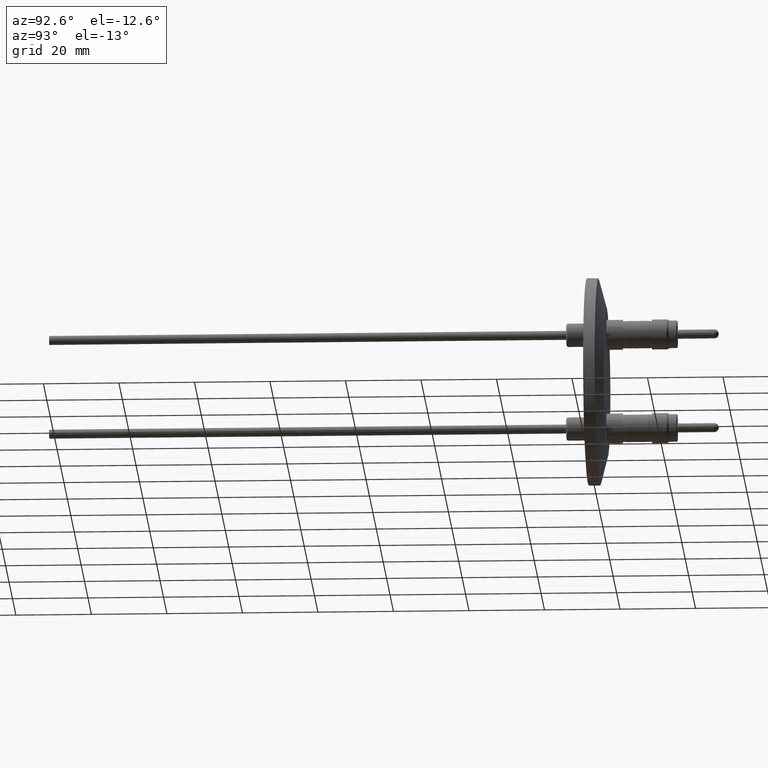
[diagram: clean part render]
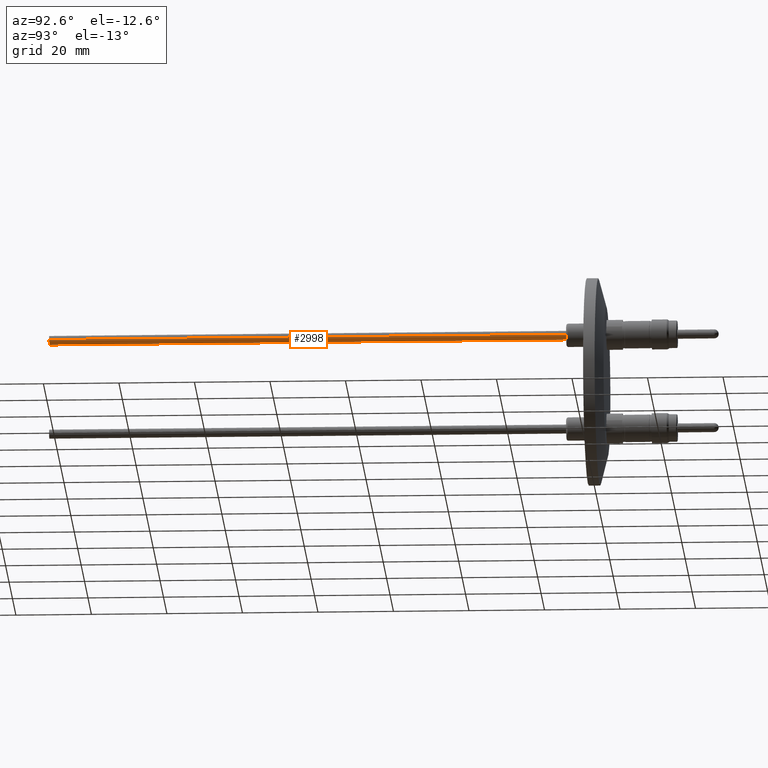
[diagram: same view with one face highlighted and labeled with its STEP entity id]
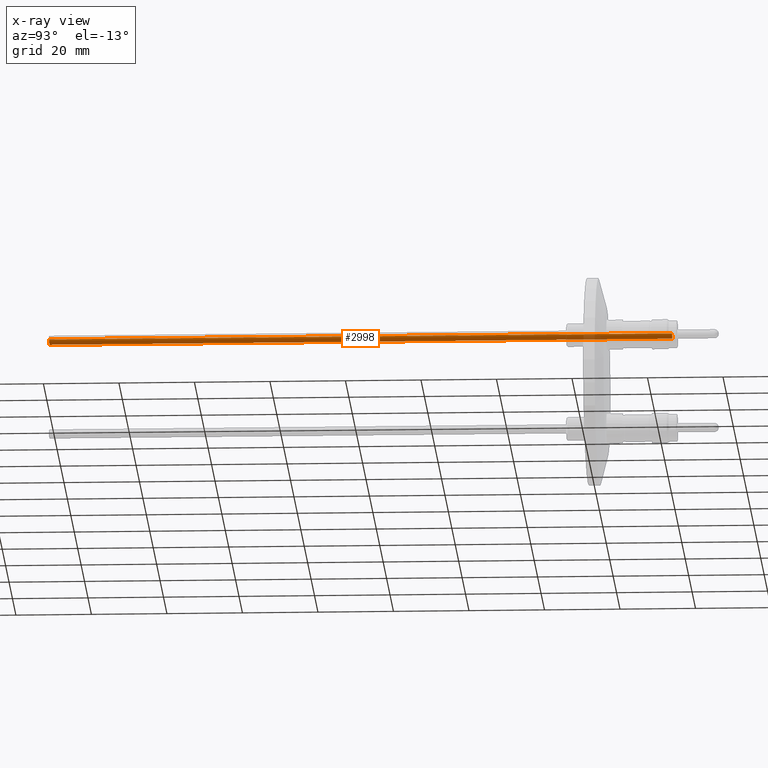
[diagram: x-ray of the same camera — body ghosted, the highlighted face saturated]
A machine part, auxiliary view. The second image highlights one B-rep face of the part: STEP entity #2998.
The next image is the same camera in x-ray: the body ghosted, the highlighted face saturated — about 3% of this face is hidden behind the body in this view.
In plain terms, the highlighted cylindrical surface (edge-blend (fillet) strip) has radius 1.1938 mm, axis along (0, 1, 0).
Its self-contained STEP definition (entity closure, byte-faithful):
#4 = CARTESIAN_POINT ( 'NONE',  ( 0.04699999999999914000, -6.487712025527222300, 0.4999999999999992200 ) ) ;
#25 = CARTESIAN_POINT ( 'NONE',  ( -0.04700000000000100600, -6.487712025527222300, 0.5000000000000002200 ) ) ;
#578 = VERTEX_POINT ( 'NONE', #25 ) ;
#592 = VERTEX_POINT ( 'NONE', #4 ) ;
#634 = VECTOR ( 'NONE', #688, 39.37007874015748100 ) ;
#637 = VECTOR ( 'NONE', #682, 39.37007874015748100 ) ;
#638 = LINE ( 'NONE', #683, #634 ) ;
#641 = LINE ( 'NONE', #685, #637 ) ;
#662 = AXIS2_PLACEMENT_3D ( 'NONE', #1155, #1160, #1168 ) ;
#682 = DIRECTION ( 'NONE',  ( 1.139261799679175500E-016, 1.000000000000000000, 3.998016188549883300E-017 ) ) ;
#683 = CARTESIAN_POINT ( 'NONE',  ( -0.04700000000000100600, -6.487712025527222300, 0.5000000000000001100 ) ) ;
#685 = CARTESIAN_POINT ( 'NONE',  ( 0.04699999999999914000, -6.487712025527222300, 0.4999999999999991100 ) ) ;
#688 = DIRECTION ( 'NONE',  ( 1.139261799679175500E-016, 1.000000000000000000, 3.998016188549883300E-017 ) ) ;
#1155 = CARTESIAN_POINT ( 'NONE',  ( -9.341512759631281400E-016, -6.487712025527222300, 0.4999999999999996100 ) ) ;
#1160 = DIRECTION ( 'NONE',  ( 1.139261799679175500E-016, 1.000000000000000000, 3.998016188549883300E-017 ) ) ;
#1168 = DIRECTION ( 'NONE',  ( -1.000000000000000000, 0.0000000000000000000, 1.017177444449458100E-014 ) ) ;
#1383 = CIRCLE ( 'NONE', #2617, 0.04700000000000006900 ) ;
#1384 = CIRCLE ( 'NONE', #2613, 0.04700000000000006900 ) ;
#1426 = CYLINDRICAL_SURFACE ( 'NONE', #662, 0.04700000000000006900 ) ;
#1428 = FACE_OUTER_BOUND ( 'NONE', #1795, .T. ) ;
#1745 = EDGE_CURVE ( 'NONE', #592, #1890, #641, .T. ) ;
#1747 = EDGE_CURVE ( 'NONE', #578, #1950, #638, .T. ) ;
#1795 = EDGE_LOOP ( 'NONE', ( #2023, #2034, #2156, #2118 ) ) ;
#1890 = VERTEX_POINT ( 'NONE', #2728 ) ;
#1950 = VERTEX_POINT ( 'NONE', #2678 ) ;
#2023 = ORIENTED_EDGE ( 'NONE', *, *, #1745, .F. ) ;
#2034 = ORIENTED_EDGE ( 'NONE', *, *, #3063, .F. ) ;
#2118 = ORIENTED_EDGE ( 'NONE', *, *, #3064, .F. ) ;
#2156 = ORIENTED_EDGE ( 'NONE', *, *, #1747, .T. ) ;
#2613 = AXIS2_PLACEMENT_3D ( 'NONE', #3309, #3310, #3311 ) ;
#2617 = AXIS2_PLACEMENT_3D ( 'NONE', #3312, #3313, #3314 ) ;
#2678 = CARTESIAN_POINT ( 'NONE',  ( -0.04700000000000027100, 0.007287974472774310200, 0.5000000000000002200 ) ) ;
#2728 = CARTESIAN_POINT ( 'NONE',  ( 0.04699999999999987500, 0.007287974472774299800, 0.4999999999999992200 ) ) ;
#2998 = ADVANCED_FACE ( 'NONE', ( #1428 ), #1426, .T. ) ;
#3063 = EDGE_CURVE ( 'NONE', #578, #592, #1384, .T. ) ;
#3064 = EDGE_CURVE ( 'NONE', #1890, #1950, #1383, .T. ) ;
#3309 = CARTESIAN_POINT ( 'NONE',  ( -9.341512759631281400E-016, -6.487712025527222300, 0.4999999999999996100 ) ) ;
#3310 = DIRECTION ( 'NONE',  ( -1.139261799679175500E-016, -1.000000000000000000, -3.998016188549883300E-017 ) ) ;
#3311 = DIRECTION ( 'NONE',  ( 1.000000000000000000, 0.0000000000000000000, -1.017177444449458100E-014 ) ) ;
#3312 = CARTESIAN_POINT ( 'NONE',  ( -1.942007370715040900E-016, 0.007287974472774305000, 0.4999999999999998300 ) ) ;
#3313 = DIRECTION ( 'NONE',  ( 1.139261799679161200E-016, 1.000000000000000000, 4.491584059259572200E-017 ) ) ;
#3314 = DIRECTION ( 'NONE',  ( 1.000000000000000000, -1.135242683537341800E-016, 0.0000000000000000000 ) ) ;